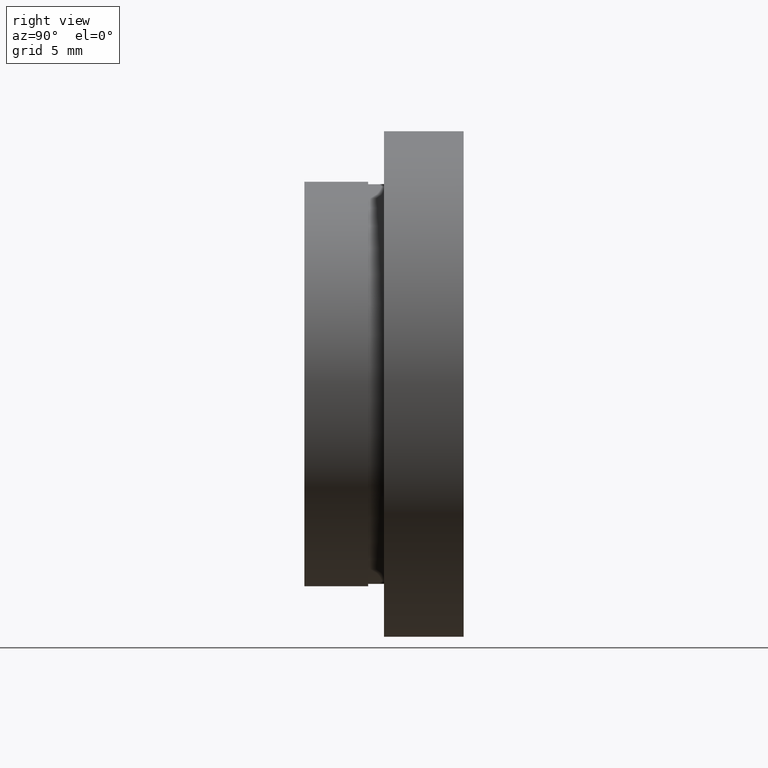
[diagram: clean part render]
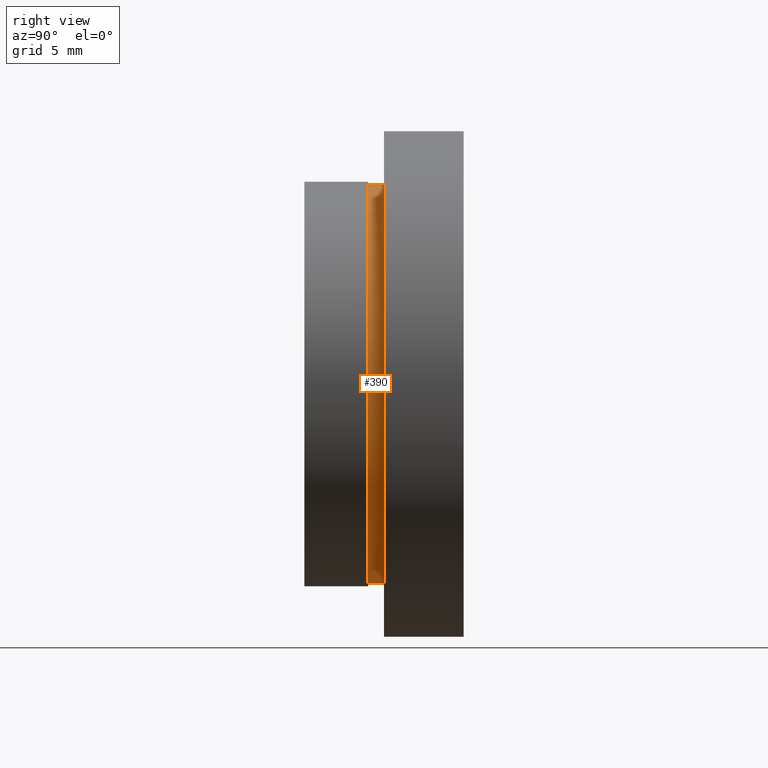
[diagram: same view with one face highlighted and labeled with its STEP entity id]
A machine part, right view. The second image highlights one B-rep face of the part: STEP entity #390.
In plain terms, the highlighted cylindrical surface (partial cylindrical patch) has radius 12.55 mm, axis along (-0, 1, -0).
Its self-contained STEP definition (entity closure, byte-faithful):
#7 = CARTESIAN_POINT ( 'NONE',  ( 0.0000000000000000000, 4.000000000000000000, 0.0000000000000000000 ) ) ;
#16 = CARTESIAN_POINT ( 'NONE',  ( 0.0000000000000000000, 13.74468085106383300, 0.0000000000000000000 ) ) ;
#30 = CARTESIAN_POINT ( 'NONE',  ( 0.0000000000000000000, 5.000000000000000900, 0.0000000000000000000 ) ) ;
#33 = DIRECTION ( 'NONE',  ( -0.0000000000000000000, 1.000000000000000000, -0.0000000000000000000 ) ) ;
#37 = VERTEX_POINT ( 'NONE', #146 ) ;
#44 = VERTEX_POINT ( 'NONE', #482 ) ;
#95 = DIRECTION ( 'NONE',  ( 0.0000000000000000000, 0.0000000000000000000, 1.000000000000000000 ) ) ;
#132 = ORIENTED_EDGE ( 'NONE', *, *, #575, .F. ) ;
#146 = CARTESIAN_POINT ( 'NONE',  ( 0.0000000000000000000, 4.000000000000000000, 12.55000000000000100 ) ) ;
#157 = DIRECTION ( 'NONE',  ( -0.0000000000000000000, 1.000000000000000000, -0.0000000000000000000 ) ) ;
#159 = CIRCLE ( 'NONE', #240, 12.55000000000000100 ) ;
#163 = ORIENTED_EDGE ( 'NONE', *, *, #267, .F. ) ;
#170 = AXIS2_PLACEMENT_3D ( 'NONE', #16, #157, #598 ) ;
#188 = ORIENTED_EDGE ( 'NONE', *, *, #255, .T. ) ;
#198 = DIRECTION ( 'NONE',  ( 0.0000000000000000000, 0.0000000000000000000, 1.000000000000000000 ) ) ;
#205 = LINE ( 'NONE', #566, #375 ) ;
#210 = AXIS2_PLACEMENT_3D ( 'NONE', #30, #364, #198 ) ;
#238 = VERTEX_POINT ( 'NONE', #431 ) ;
#240 = AXIS2_PLACEMENT_3D ( 'NONE', #7, #387, #95 ) ;
#252 = DIRECTION ( 'NONE',  ( -0.0000000000000000000, 1.000000000000000000, -0.0000000000000000000 ) ) ;
#255 = EDGE_CURVE ( 'NONE', #37, #322, #159, .T. ) ;
#267 = EDGE_CURVE ( 'NONE', #44, #238, #485, .T. ) ;
#278 = EDGE_LOOP ( 'NONE', ( #188, #471, #163, #132 ) ) ;
#317 = VECTOR ( 'NONE', #33, 1000.000000000000000 ) ;
#322 = VERTEX_POINT ( 'NONE', #346 ) ;
#346 = CARTESIAN_POINT ( 'NONE',  ( 1.536931732929928400E-015, 4.000000000000000000, -12.55000000000000100 ) ) ;
#364 = DIRECTION ( 'NONE',  ( -0.0000000000000000000, 1.000000000000000000, -0.0000000000000000000 ) ) ;
#375 = VECTOR ( 'NONE', #252, 1000.000000000000000 ) ;
#377 = CYLINDRICAL_SURFACE ( 'NONE', #170, 12.55000000000000100 ) ;
#387 = DIRECTION ( 'NONE',  ( -0.0000000000000000000, 1.000000000000000000, -0.0000000000000000000 ) ) ;
#390 = ADVANCED_FACE ( 'NONE', ( #623 ), #377, .T. ) ;
#431 = CARTESIAN_POINT ( 'NONE',  ( 1.536931732929928400E-015, 5.000000000000000900, -12.55000000000000100 ) ) ;
#471 = ORIENTED_EDGE ( 'NONE', *, *, #531, .T. ) ;
#478 = LINE ( 'NONE', #524, #317 ) ;
#482 = CARTESIAN_POINT ( 'NONE',  ( 0.0000000000000000000, 5.000000000000000900, 12.55000000000000100 ) ) ;
#485 = CIRCLE ( 'NONE', #210, 12.55000000000000100 ) ;
#524 = CARTESIAN_POINT ( 'NONE',  ( 1.536931732929928400E-015, 13.74468085106383300, -12.55000000000000100 ) ) ;
#531 = EDGE_CURVE ( 'NONE', #322, #238, #478, .T. ) ;
#566 = CARTESIAN_POINT ( 'NONE',  ( 0.0000000000000000000, 13.74468085106383300, 12.55000000000000100 ) ) ;
#575 = EDGE_CURVE ( 'NONE', #37, #44, #205, .T. ) ;
#598 = DIRECTION ( 'NONE',  ( 0.0000000000000000000, 0.0000000000000000000, 1.000000000000000000 ) ) ;
#623 = FACE_OUTER_BOUND ( 'NONE', #278, .T. ) ;